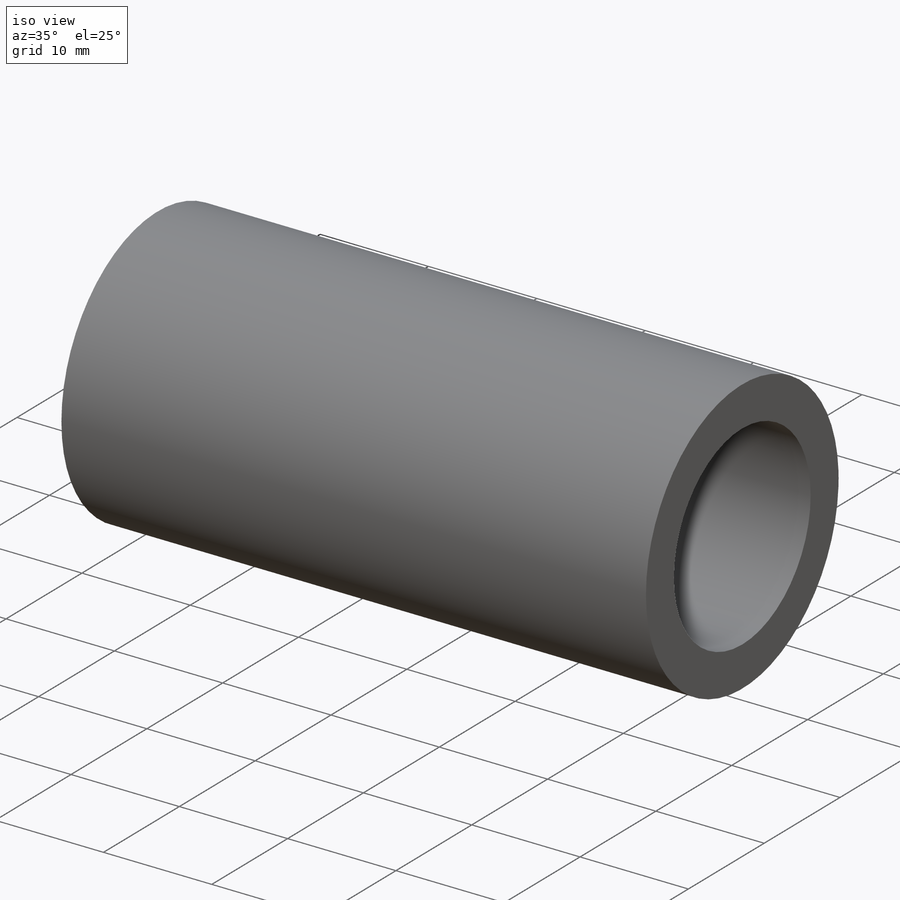
[diagram: iso view]
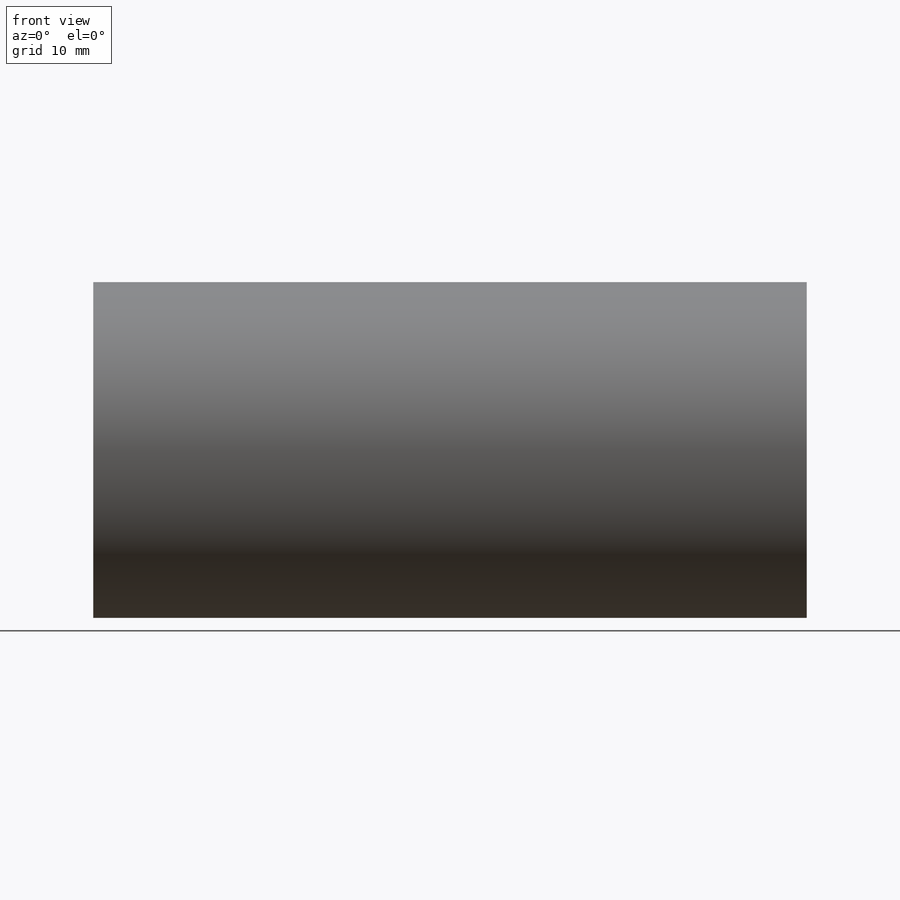
[diagram: front view]
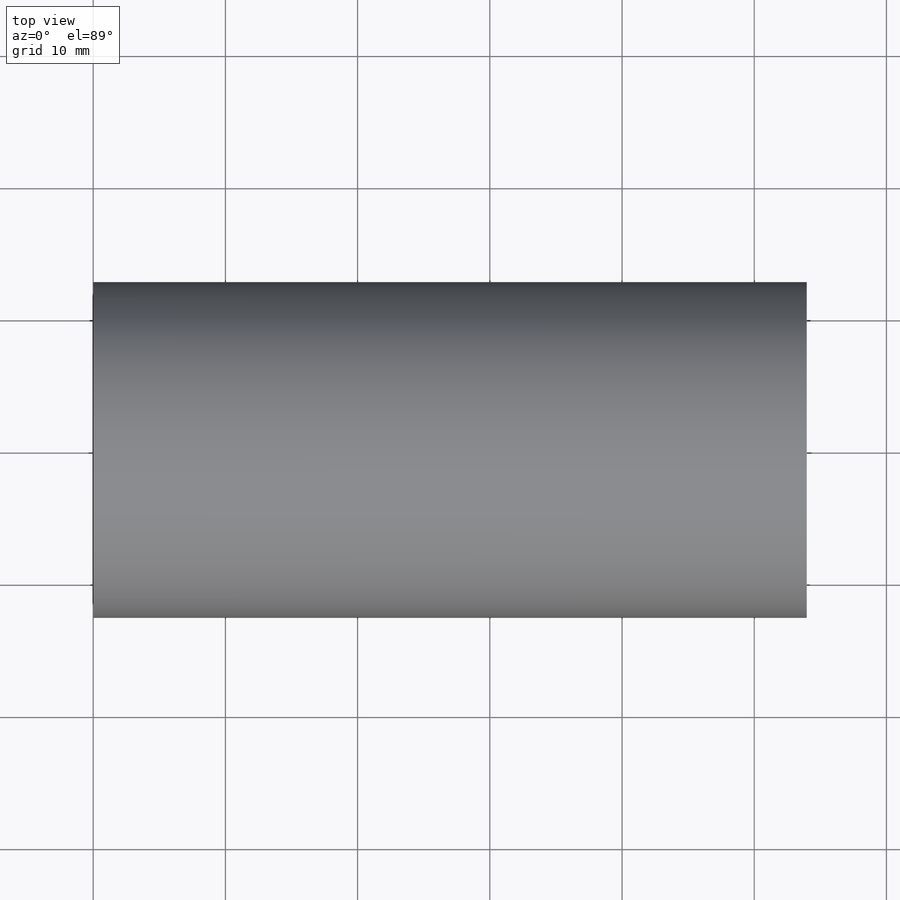
[diagram: top view]
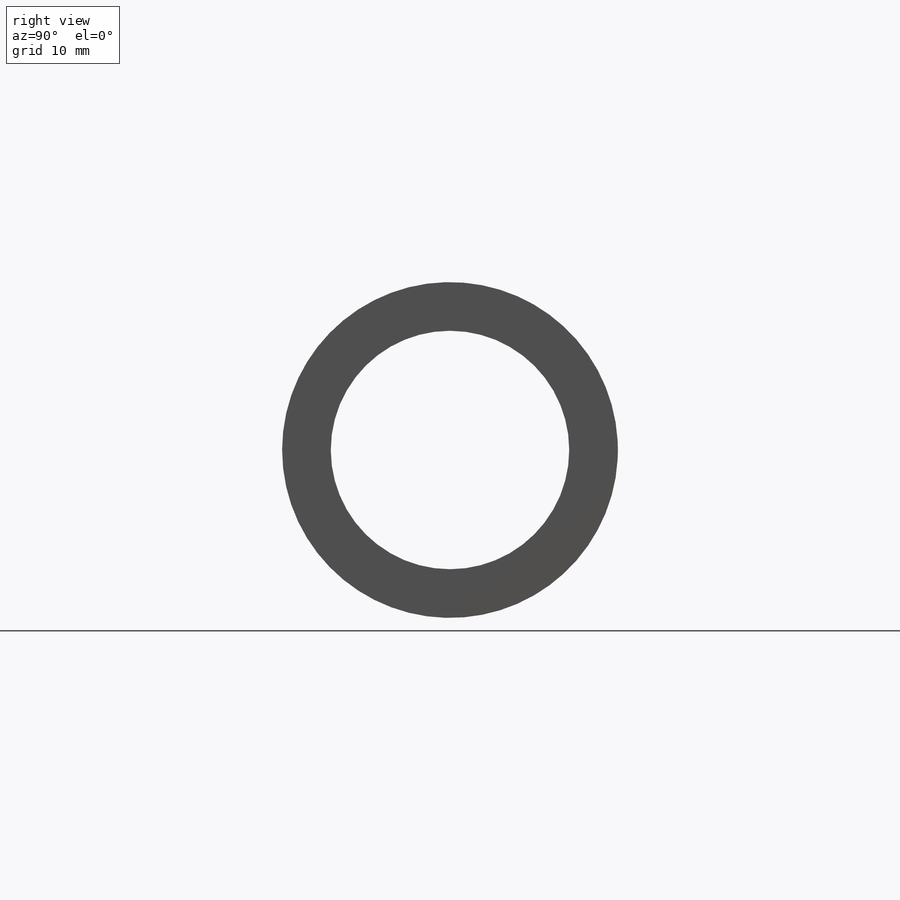
[diagram: right view]
SOLIDWORKS PART (.sldprt)
format: sldprt  version: not decoded by parser v0  size: 348,672 bytes
history: native  units: mm
features: sketch x3, extrude x2, material x1, thread x1, cut_extrude x1 + 1 further entry (+11 scaffold rows collapsed)
feature tree (20):
  scaffold x11  (default folders/planes/origin — collapsed)
  material  "Material <not specified>"
  "Detail Folder1"  RD2=31.75mm
  sketch  "Sketch2"  dims[D1=25.4mm D2=22.4282mm]
  extrude  "Extrude1"  [1 undecoded]
  thread  "Cosmetic Thread1"  Diameter=15.24mm  [1 undecoded]
  sketch  "Sketch3"  dims[D1=18.034mm]
  extrude  "Extrude2"  Depth=25.4mm
  sketch  "Sketch4"  dims[D1=0.0mm]
  cut_extrude  "Cut-Extrude3"  Depth=31.75mm
decode coverage: 6 of 7 modeling features carry decoded parameters; 1 rows unclassified (native names shown)
note: 2 parameter values undecoded
note: suppression state not decoded; provenance and decode notes live in map.json
